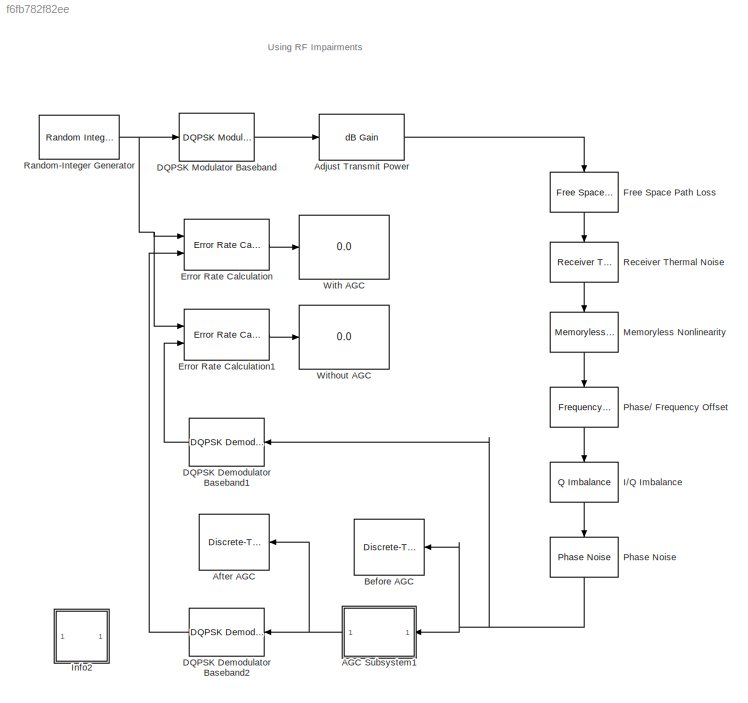
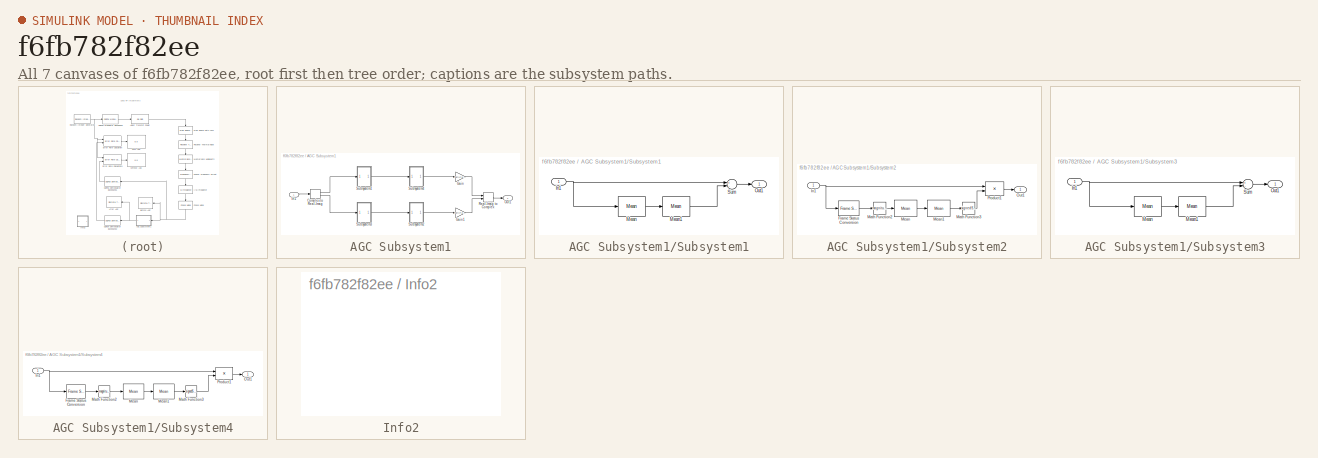
[diagram: thumbnail index - all 7 canvases of the model, root first then tree order]
MODEL slx_f6fb782f82ee
KIND model
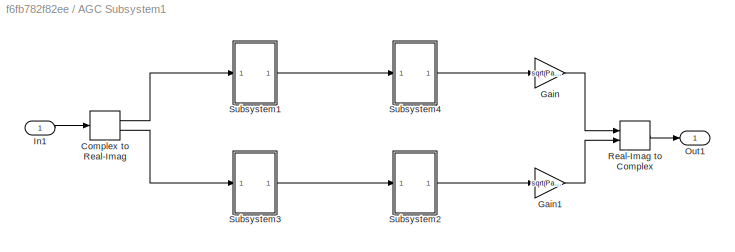
BLOCK [SubSystem] AGC Subsystem1
  Ports = [1, 1]
  RequestExecContextInheritance = off
BLOCK [ComplexToRealImag] AGC Subsystem1/Complex to Real-Imag
  Ports = [1, 2]
BLOCK [Gain] AGC Subsystem1/Gain
  Gain = sqrt(Pavg/2)
  SaturateOnIntegerOverflow = off
BLOCK [Gain] AGC Subsystem1/Gain1
  Gain = sqrt(Pavg/2)
  SaturateOnIntegerOverflow = off
BLOCK [Inport] AGC Subsystem1/In1
  IconDisplay = Port number
BLOCK [Outport] AGC Subsystem1/Out1
  IconDisplay = Port number
BLOCK [RealImagToComplex] AGC Subsystem1/Real-Imag to Complex
  Ports = [2, 1]
BLOCK [SubSystem] AGC Subsystem1/Subsystem1
  Ports = [1, 1]
  RequestExecContextInheritance = off
BLOCK [Inport] AGC Subsystem1/Subsystem1/In1
  IconDisplay = Port number
BLOCK [Reference] AGC Subsystem1/Subsystem1/Mean  REF=dspstat3/Mean
  InputProcessing = Columns as channels (frame based)
  LockScale = off
  Ports = [1, 1]
  SourceBlock = dspstat3/Mean
  SourceType = Mean
  UserDataPersistent = on
  accumDataTypeStr = Inherit: Same as input
  accumFracLength = 30
  accumLastDataTypeStr = Inherit: Same as input
  accumMode = Same as input
  accumWordLength = 32
  additionalParams = off
  allowOverrides = on
  dimension = 1
  directionMode = Each column
  outputDataTypeStr = Inherit: Same as accumulator
  outputFracLength = 30
  outputLastDataTypeStr = Inherit: Same as accumulator
  outputMax = []
  outputMin = []
  outputMode = Same as accumulator
  outputWordLength = 32
  overflowMode = off
  reset_popup = None
  roiEnable = off
  roiFlag = off
  roiOutput = Individual statistics for each ROI
  roiPortion = Entire ROI
  roiType = Rectangles
  roundingMode = Floor
  run = on
  treatSBRowAsCol = on
BLOCK [Reference] AGC Subsystem1/Subsystem1/Mean1  REF=dspstat3/Mean
  InputProcessing = Columns as channels (frame based)
  LockScale = off
  Ports = [1, 1]
  SourceBlock = dspstat3/Mean
  SourceType = Mean
  UserDataPersistent = on
  accumDataTypeStr = Inherit: Same as input
  accumFracLength = 30
  accumLastDataTypeStr = Inherit: Same as input
  accumMode = Same as input
  accumWordLength = 32
  additionalParams = off
  allowOverrides = on
  dimension = 1
  directionMode = Each column
  outputDataTypeStr = Inherit: Same as accumulator
  outputFracLength = 30
  outputLastDataTypeStr = Inherit: Same as accumulator
  outputMax = []
  outputMin = []
  outputMode = Same as accumulator
  outputWordLength = 32
  overflowMode = off
  reset_popup = None
  roiEnable = off
  roiFlag = off
  roiOutput = Individual statistics for each ROI
  roiPortion = Entire ROI
  roiType = Rectangles
  roundingMode = Floor
  run = off
  treatSBRowAsCol = on
BLOCK [Outport] AGC Subsystem1/Subsystem1/Out1
  IconDisplay = Port number
BLOCK [Sum] AGC Subsystem1/Subsystem1/Sum
  Inputs = +-
  Ports = [2, 1]
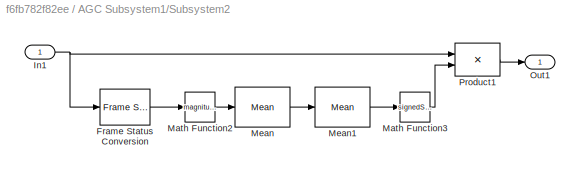
BLOCK [SubSystem] AGC Subsystem1/Subsystem2
  Ports = [1, 1]
  RequestExecContextInheritance = off
BLOCK [Reference] AGC Subsystem1/Subsystem2/Frame Status Conversion  REF=dspobslib/Frame Status
Conversion
  Ports = [1, 1]
  SourceBlock = dspobslib/Frame Status\nConversion
  SourceType = Frame Status Conversion
  growRefPort = off
  outframe = Sample-based
BLOCK [Inport] AGC Subsystem1/Subsystem2/In1
  IconDisplay = Port number
BLOCK [Math] AGC Subsystem1/Subsystem2/Math Function2
  Operator = magnitude^2
  Ports = [1, 1]
BLOCK [Sqrt] AGC Subsystem1/Subsystem2/Math Function3
  AlgorithmType = Newton-Raphson
  Operator = signedSqrt
BLOCK [Reference] AGC Subsystem1/Subsystem2/Mean  REF=dspstat3/Mean
  InputProcessing = Columns as channels (frame based)
  LockScale = off
  Ports = [1, 1]
  SourceBlock = dspstat3/Mean
  SourceType = Mean
  UserDataPersistent = on
  accumDataTypeStr = Inherit: Same as input
  accumFracLength = 30
  accumLastDataTypeStr = Inherit: Same as input
  accumMode = Same as input
  accumWordLength = 32
  additionalParams = off
  allowOverrides = on
  dimension = 1
  directionMode = Each column
  outputDataTypeStr = Inherit: Same as accumulator
  outputFracLength = 30
  outputLastDataTypeStr = Inherit: Same as accumulator
  outputMax = []
  outputMin = []
  outputMode = Same as accumulator
  outputWordLength = 32
  overflowMode = off
  reset_popup = None
  roiEnable = off
  roiFlag = off
  roiOutput = Individual statistics for each ROI
  roiPortion = Entire ROI
  roiType = Rectangles
  roundingMode = Floor
  run = off
  treatSBRowAsCol = on
BLOCK [Reference] AGC Subsystem1/Subsystem2/Mean1  REF=dspstat3/Mean
  InputProcessing = Elements as channels (sample based)
  LockScale = off
  Ports = [1, 1]
  SourceBlock = dspstat3/Mean
  SourceType = Mean
  UserDataPersistent = on
  accumDataTypeStr = Inherit: Same as input
  accumFracLength = 30
  accumLastDataTypeStr = Inherit: Same as input
  accumMode = Same as input
  accumWordLength = 32
  additionalParams = off
  allowOverrides = on
  dimension = 1
  directionMode = Each column
  outputDataTypeStr = Inherit: Same as accumulator
  outputFracLength = 30
  outputLastDataTypeStr = Inherit: Same as accumulator
  outputMax = []
  outputMin = []
  outputMode = Same as accumulator
  outputWordLength = 32
  overflowMode = off
  reset_popup = None
  roiEnable = off
  roiFlag = off
  roiOutput = Individual statistics for each ROI
  roiPortion = Entire ROI
  roiType = Rectangles
  roundingMode = Floor
  run = on
  treatSBRowAsCol = on
BLOCK [Outport] AGC Subsystem1/Subsystem2/Out1
  IconDisplay = Port number
BLOCK [Product] AGC Subsystem1/Subsystem2/Product1
  Inputs = */
  Ports = [2, 1]
  RndMeth = Floor
BLOCK [SubSystem] AGC Subsystem1/Subsystem3
  Ports = [1, 1]
  RequestExecContextInheritance = off
BLOCK [Inport] AGC Subsystem1/Subsystem3/In1
  IconDisplay = Port number
BLOCK [Reference] AGC Subsystem1/Subsystem3/Mean  REF=dspstat3/Mean
  InputProcessing = Columns as channels (frame based)
  LockScale = off
  Ports = [1, 1]
  SourceBlock = dspstat3/Mean
  SourceType = Mean
  UserDataPersistent = on
  accumDataTypeStr = Inherit: Same as input
  accumFracLength = 30
  accumLastDataTypeStr = Inherit: Same as input
  accumMode = Same as input
  accumWordLength = 32
  additionalParams = off
  allowOverrides = on
  dimension = 1
  directionMode = Each column
  outputDataTypeStr = Inherit: Same as accumulator
  outputFracLength = 30
  outputLastDataTypeStr = Inherit: Same as accumulator
  outputMax = []
  outputMin = []
  outputMode = Same as accumulator
  outputWordLength = 32
  overflowMode = off
  reset_popup = None
  roiEnable = off
  roiFlag = off
  roiOutput = Individual statistics for each ROI
  roiPortion = Entire ROI
  roiType = Rectangles
  roundingMode = Floor
  run = on
  treatSBRowAsCol = on
BLOCK [Reference] AGC Subsystem1/Subsystem3/Mean1  REF=dspstat3/Mean
  InputProcessing = Columns as channels (frame based)
  LockScale = off
  Ports = [1, 1]
  SourceBlock = dspstat3/Mean
  SourceType = Mean
  UserDataPersistent = on
  accumDataTypeStr = Inherit: Same as input
  accumFracLength = 30
  accumLastDataTypeStr = Inherit: Same as input
  accumMode = Same as input
  accumWordLength = 32
  additionalParams = off
  allowOverrides = on
  dimension = 1
  directionMode = Each column
  outputDataTypeStr = Inherit: Same as accumulator
  outputFracLength = 30
  outputLastDataTypeStr = Inherit: Same as accumulator
  outputMax = []
  outputMin = []
  outputMode = Same as accumulator
  outputWordLength = 32
  overflowMode = off
  reset_popup = None
  roiEnable = off
  roiFlag = off
  roiOutput = Individual statistics for each ROI
  roiPortion = Entire ROI
  roiType = Rectangles
  roundingMode = Floor
  run = off
  treatSBRowAsCol = on
BLOCK [Outport] AGC Subsystem1/Subsystem3/Out1
  IconDisplay = Port number
BLOCK [Sum] AGC Subsystem1/Subsystem3/Sum
  Inputs = +-
  Ports = [2, 1]
BLOCK [SubSystem] AGC Subsystem1/Subsystem4
  Ports = [1, 1]
  RequestExecContextInheritance = off
BLOCK [Reference] AGC Subsystem1/Subsystem4/Frame Status Conversion  REF=dspobslib/Frame Status
Conversion
  Ports = [1, 1]
  SourceBlock = dspobslib/Frame Status\nConversion
  SourceType = Frame Status Conversion
  growRefPort = off
  outframe = Sample-based
BLOCK [Inport] AGC Subsystem1/Subsystem4/In1
  IconDisplay = Port number
BLOCK [Math] AGC Subsystem1/Subsystem4/Math Function2
  Operator = magnitude^2
  Ports = [1, 1]
BLOCK [Sqrt] AGC Subsystem1/Subsystem4/Math Function3
  AlgorithmType = Newton-Raphson
  Operator = signedSqrt
BLOCK [Reference] AGC Subsystem1/Subsystem4/Mean  REF=dspstat3/Mean
  InputProcessing = Columns as channels (frame based)
  LockScale = off
  Ports = [1, 1]
  SourceBlock = dspstat3/Mean
  SourceType = Mean
  UserDataPersistent = on
  accumDataTypeStr = Inherit: Same as input
  accumFracLength = 30
  accumLastDataTypeStr = Inherit: Same as input
  accumMode = Same as input
  accumWordLength = 32
  additionalParams = off
  allowOverrides = on
  dimension = 1
  directionMode = Each column
  outputDataTypeStr = Inherit: Same as accumulator
  outputFracLength = 30
  outputLastDataTypeStr = Inherit: Same as accumulator
  outputMax = []
  outputMin = []
  outputMode = Same as accumulator
  outputWordLength = 32
  overflowMode = off
  reset_popup = None
  roiEnable = off
  roiFlag = off
  roiOutput = Individual statistics for each ROI
  roiPortion = Entire ROI
  roiType = Rectangles
  roundingMode = Floor
  run = off
  treatSBRowAsCol = on
BLOCK [Reference] AGC Subsystem1/Subsystem4/Mean1  REF=dspstat3/Mean
  InputProcessing = Elements as channels (sample based)
  LockScale = off
  Ports = [1, 1]
  SourceBlock = dspstat3/Mean
  SourceType = Mean
  UserDataPersistent = on
  accumDataTypeStr = Inherit: Same as input
  accumFracLength = 30
  accumLastDataTypeStr = Inherit: Same as input
  accumMode = Same as input
  accumWordLength = 32
  additionalParams = off
  allowOverrides = on
  dimension = 1
  directionMode = Each column
  outputDataTypeStr = Inherit: Same as accumulator
  outputFracLength = 30
  outputLastDataTypeStr = Inherit: Same as accumulator
  outputMax = []
  outputMin = []
  outputMode = Same as accumulator
  outputWordLength = 32
  overflowMode = off
  reset_popup = None
  roiEnable = off
  roiFlag = off
  roiOutput = Individual statistics for each ROI
  roiPortion = Entire ROI
  roiType = Rectangles
  roundingMode = Floor
  run = on
  treatSBRowAsCol = on
BLOCK [Outport] AGC Subsystem1/Subsystem4/Out1
  IconDisplay = Port number
BLOCK [Product] AGC Subsystem1/Subsystem4/Product1
  Inputs = */
  Ports = [2, 1]
  RndMeth = Floor
BLOCK [Reference] Adjust Transmit Power  REF=dspmathops/dB Gain
  Ports = [1, 1]
  SourceBlock = dspmathops/dB Gain
  SourceType = dB Gain
  dB = -73
  intype = Amplitude
BLOCK [Reference] After AGC  REF=commsink2/Discrete-Time
Signal Trajectory
Scope
  AxisGrid = on
  Diagnostics = AllowInheritedTsInSrc
  FigPos = [65 82 367 291]
  FrameNumber = off
  LineColors = b
  LineStyles = -
  Ports = [1]
  SourceBlock = commsink2/Discrete-Time\nSignal Trajectory\nScope
  SourceType = Discrete-Time Signal Trajectory Scope
  Tag = SignalTrajectory
  block_type_ = xy
  fading = on
  figTitle = Signal Trajectory
  inphaseLabel = In-phase Amplitude
  numLinesMax = 8
  numNewFrames = 10
  numTraces = 40
  offsetEye = 0
  openScopeAtSimStart = on
  quadratureLabel = Quadrature Amplitude
  render = on
  sampPerSymb = 8
  xMax = 1.13865133953243
  xMin = -1.14147836535369
  yMax = 1.16446255933936
  yMin = -1.11566714554676
BLOCK [Reference] Before AGC  REF=commsink2/Discrete-Time
Signal Trajectory
Scope
  AxisGrid = on
  Diagnostics = AllowInheritedTsInSrc
  FigPos = [514 89 348 283]
  FrameNumber = off
  LineColors = b
  LineStyles = -
  Ports = [1]
  SourceBlock = commsink2/Discrete-Time\nSignal Trajectory\nScope
  SourceType = Discrete-Time Signal Trajectory Scope
  Tag = SignalTrajectory
  block_type_ = xy
  fading = on
  figTitle = Signal Trajectory
  inphaseLabel = In-phase Amplitude
  numLinesMax = 8
  numNewFrames = 10
  numTraces = 40
  offsetEye = 0
  openScopeAtSimStart = on
  quadratureLabel = Quadrature Amplitude
  render = on
  sampPerSymb = 8
  xMax = 1e-006
  xMin = -1e-006
  yMax = 1e-006
  yMin = -1e-006
BLOCK [Reference] DQPSK Demodulator Baseband1  REF=commdigbbndpm3/DQPSK
Demodulator
Baseband
  Dec = Binary
  OutType = Integer
  Ph = pi/4
  Ports = [1, 1]
  SourceBlock = commdigbbndpm3/DQPSK\nDemodulator\nBaseband
  SourceType = DQPSK Demodulator Baseband
  outDtype1 = double
  outDtype2 = double
BLOCK [Reference] DQPSK Demodulator Baseband2  REF=commdigbbndpm3/DQPSK
Demodulator
Baseband
  Dec = Binary
  OutType = Integer
  Ph = pi/4
  Ports = [1, 1]
  SourceBlock = commdigbbndpm3/DQPSK\nDemodulator\nBaseband
  SourceType = DQPSK Demodulator Baseband
  outDtype1 = double
  outDtype2 = double
BLOCK [Reference] DQPSK Modulator Baseband  REF=commdigbbndpm3/DQPSK
Modulator
Baseband
  Enc = Binary
  InType = Integer
  Ph = pi/4
  Ports = [1, 1]
  SourceBlock = commdigbbndpm3/DQPSK\nModulator\nBaseband
  SourceType = DQPSK Modulator Baseband
  outDtype = double
BLOCK [Reference] Error Rate Calculation  REF=commsink2/Error Rate
Calculation
  N = 0
  PMode = Port
  Ports = [2, 1]
  RsMode2 = off
  SourceBlock = commsink2/Error Rate\nCalculation
  SourceType = Error Rate Calculation
  WsName = ErrorVec
  cp_mode = Entire frame
  maxBits = 1e6
  numErr = 100
  st_delay = 1000
  stop = off
  subframe = []
BLOCK [Reference] Error Rate Calculation1  REF=commsink2/Error Rate
Calculation
  N = 0
  PMode = Port
  Ports = [2, 1]
  RsMode2 = off
  SourceBlock = commsink2/Error Rate\nCalculation
  SourceType = Error Rate Calculation
  WsName = ErrorVec
  cp_mode = Entire frame
  maxBits = 1e6
  numErr = 100
  st_delay = 1000
  stop = off
  subframe = []
BLOCK [Reference] Free Space Path Loss  REF=commrflib2/Free Space
Path Loss
  Ports = [1, 1]
  SourceBlock = commrflib2/Free Space\nPath Loss
  SourceType = Free Space Path Loss
  d = .2
  dB = 10
  fc = 900
  mode = Distance and Frequency
BLOCK [Reference] I//Q Imbalance  REF=commrflib2/I//Q
Imbalance
  Idc = 0
  Ports = [1, 1]
  Qdc = 0
  SourceBlock = commrflib2/I//Q\nImbalance
  SourceType = I/Q Imbalance
  ampImbal = 12
  phsImbal = 0
BLOCK [SubSystem] Info2
  AncestorBlock = commblksprivate/Info
  OpenFcn = helpview([docroot '/toolbox/comm/comm.map'], 'doc_receiverimpairments_dqpsk')
  Ports = []
  RequestExecContextInheritance = off
BLOCK [Reference] Memoryless Nonlinearity  REF=commrflib2/Memoryless
Nonlinearity
  GindB = 0
  GoutdB = 0
  LPwrLimAMPM = 10
  Ports = [1, 1]
  SourceBlock = commrflib2/Memoryless\nNonlinearity
  SourceType = Memoryless Nonlinearity
  UPwrLimAMPM = inf
  am2pm = 0
  amam = [2.1587 1.1517]
  ampm = [4.0330 9.1040]
  iip3 = 13
  linGaindB = 10
  model_select = Cubic polynomial
  p = 0.5
  vsat = 1
  x = [8.1081 1.5413 6.5202 -0.0718]
  y = [4.6645 2.0965 10.88 -0.003]
BLOCK [Reference] Phase Noise  REF=commrflib2/Phase
Noise
  Fo = 40
  Fs = 1024
  PhNs = -76
  Ports = [1, 1]
  SourceBlock = commrflib2/Phase\nNoise
  SourceType = Phase Noise
  seed = 2137
BLOCK [Reference] Phase// Frequency Offset  REF=commrflib2/Phase//
Frequency
Offset
  Ports = [1, 1]
  SourceBlock = commrflib2/Phase//\nFrequency\nOffset
  SourceType = Phase/Frequency Offset
  freqOffset = 2
  freqPort = off
  phaseOffset = 30
BLOCK [Reference] Random-Integer Generator  REF=commrandsrc2/Random Integer
Generator
  Ports = [0, 1]
  SourceBlock = commrandsrc2/Random Integer\nGenerator
  SourceType = Random Integer Generator
  Ts = 1e-4
  frameBased = on
  mul = 4
  orient = off
  outDataType = double
  sampPerFrame = 100
  seed = 1233
BLOCK [Reference] Receiver Thermal Noise  REF=commrflib2/Receiver
Thermal Noise
  Ports = [1, 1]
  SourceBlock = commrflib2/Receiver\nThermal Noise
  SourceType = Receiver Thermal Noise
  method = Noise temperature
  nfactor = 2
  nfigure = 20
  ntemp = 290
  seed = 67987
BLOCK [Display] With AGC
  Decimation = 1
  Ports = [1]
BLOCK [Display] Without AGC
  Decimation = 1
  Ports = [1]
ANNOTATION (root): Using RF Impairments
LINE AGC Subsystem1/Complex to Real-Imag:1 -> AGC Subsystem1/Subsystem1:1
LINE AGC Subsystem1/Complex to Real-Imag:2 -> AGC Subsystem1/Subsystem3:1
LINE AGC Subsystem1/Gain1:1 -> AGC Subsystem1/Real-Imag to Complex:2
LINE AGC Subsystem1/Gain:1 -> AGC Subsystem1/Real-Imag to Complex:1
LINE AGC Subsystem1/In1:1 -> AGC Subsystem1/Complex to Real-Imag:1
LINE AGC Subsystem1/Real-Imag to Complex:1 -> AGC Subsystem1/Out1:1
NET AGC Subsystem1/Subsystem1/In1:1 -> AGC Subsystem1/Subsystem1/Mean:1, AGC Subsystem1/Subsystem1/Sum:1
LINE AGC Subsystem1/Subsystem1/Mean1:1 -> AGC Subsystem1/Subsystem1/Sum:2
LINE AGC Subsystem1/Subsystem1/Mean:1 -> AGC Subsystem1/Subsystem1/Mean1:1
LINE AGC Subsystem1/Subsystem1/Sum:1 -> AGC Subsystem1/Subsystem1/Out1:1
LINE AGC Subsystem1/Subsystem1:1 -> AGC Subsystem1/Subsystem4:1
LINE AGC Subsystem1/Subsystem2/Frame Status Conversion:1 -> AGC Subsystem1/Subsystem2/Math Function2:1
NET AGC Subsystem1/Subsystem2/In1:1 -> AGC Subsystem1/Subsystem2/Frame Status Conversion:1, AGC Subsystem1/Subsystem2/Product1:1
LINE AGC Subsystem1/Subsystem2/Math Function2:1 -> AGC Subsystem1/Subsystem2/Mean:1
LINE AGC Subsystem1/Subsystem2/Math Function3:1 -> AGC Subsystem1/Subsystem2/Product1:2
LINE AGC Subsystem1/Subsystem2/Mean1:1 -> AGC Subsystem1/Subsystem2/Math Function3:1
LINE AGC Subsystem1/Subsystem2/Mean:1 -> AGC Subsystem1/Subsystem2/Mean1:1
LINE AGC Subsystem1/Subsystem2/Product1:1 -> AGC Subsystem1/Subsystem2/Out1:1
LINE AGC Subsystem1/Subsystem2:1 -> AGC Subsystem1/Gain1:1
NET AGC Subsystem1/Subsystem3/In1:1 -> AGC Subsystem1/Subsystem3/Mean:1, AGC Subsystem1/Subsystem3/Sum:1
LINE AGC Subsystem1/Subsystem3/Mean1:1 -> AGC Subsystem1/Subsystem3/Sum:2
LINE AGC Subsystem1/Subsystem3/Mean:1 -> AGC Subsystem1/Subsystem3/Mean1:1
LINE AGC Subsystem1/Subsystem3/Sum:1 -> AGC Subsystem1/Subsystem3/Out1:1
LINE AGC Subsystem1/Subsystem3:1 -> AGC Subsystem1/Subsystem2:1
LINE AGC Subsystem1/Subsystem4/Frame Status Conversion:1 -> AGC Subsystem1/Subsystem4/Math Function2:1
NET AGC Subsystem1/Subsystem4/In1:1 -> AGC Subsystem1/Subsystem4/Frame Status Conversion:1, AGC Subsystem1/Subsystem4/Product1:1
LINE AGC Subsystem1/Subsystem4/Math Function2:1 -> AGC Subsystem1/Subsystem4/Mean:1
LINE AGC Subsystem1/Subsystem4/Math Function3:1 -> AGC Subsystem1/Subsystem4/Product1:2
LINE AGC Subsystem1/Subsystem4/Mean1:1 -> AGC Subsystem1/Subsystem4/Math Function3:1
LINE AGC Subsystem1/Subsystem4/Mean:1 -> AGC Subsystem1/Subsystem4/Mean1:1
LINE AGC Subsystem1/Subsystem4/Product1:1 -> AGC Subsystem1/Subsystem4/Out1:1
LINE AGC Subsystem1/Subsystem4:1 -> AGC Subsystem1/Gain:1
NET AGC Subsystem1:1 -> After AGC:1, DQPSK Demodulator Baseband2:1
LINE Adjust Transmit Power:1 -> Free Space Path Loss:1
LINE DQPSK Demodulator Baseband1:1 -> Error Rate Calculation1:2
LINE DQPSK Demodulator Baseband2:1 -> Error Rate Calculation:2
LINE DQPSK Modulator Baseband:1 -> Adjust Transmit Power:1
LINE Error Rate Calculation1:1 -> Without AGC:1
LINE Error Rate Calculation:1 -> With AGC:1
LINE Free Space Path Loss:1 -> Receiver Thermal Noise:1
LINE I//Q Imbalance:1 -> Phase Noise:1
LINE Memoryless Nonlinearity:1 -> Phase// Frequency Offset:1
NET Phase Noise:1 -> AGC Subsystem1:1, Before AGC:1, DQPSK Demodulator Baseband1:1
LINE Phase// Frequency Offset:1 -> I//Q Imbalance:1
NET Random-Integer Generator:1 -> DQPSK Modulator Baseband:1, Error Rate Calculation1:1, Error Rate Calculation:1
LINE Receiver Thermal Noise:1 -> Memoryless Nonlinearity:1
note: NET lines group one-source signal fan-out (src -> all destinations, sorted); 1:1 wires keep LINE
